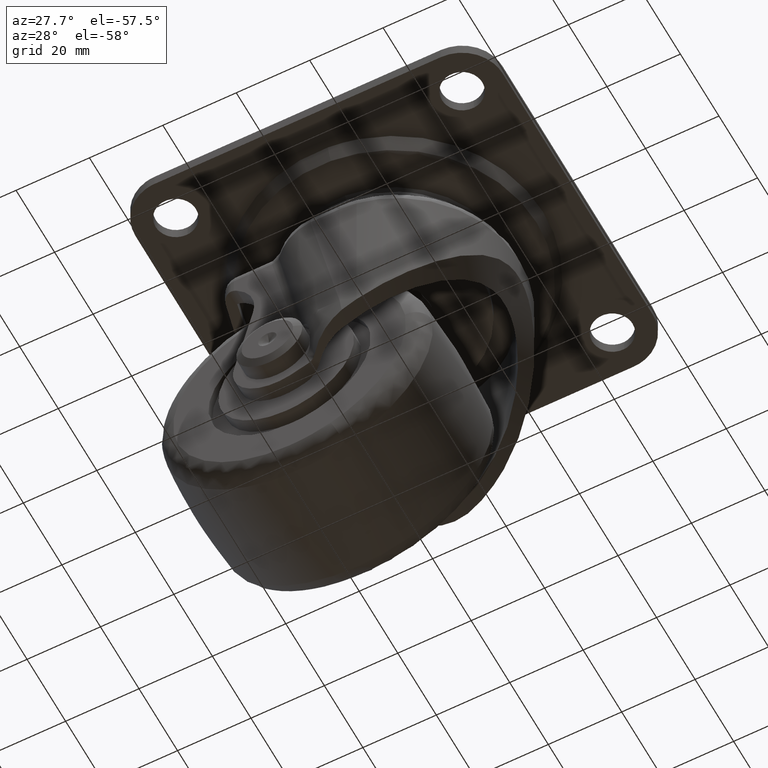
[diagram: clean part render]
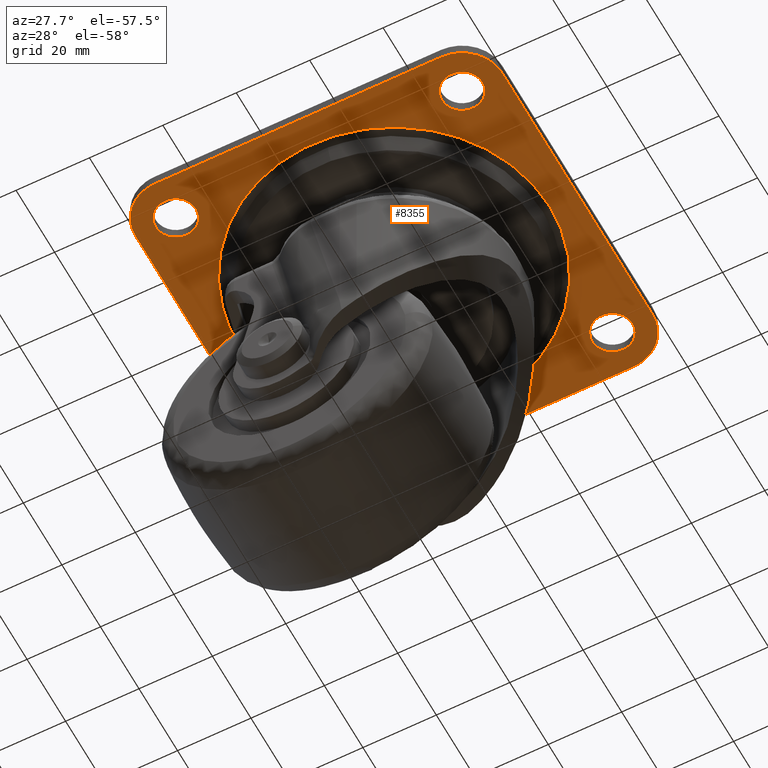
[diagram: same view with one face highlighted and labeled with its STEP entity id]
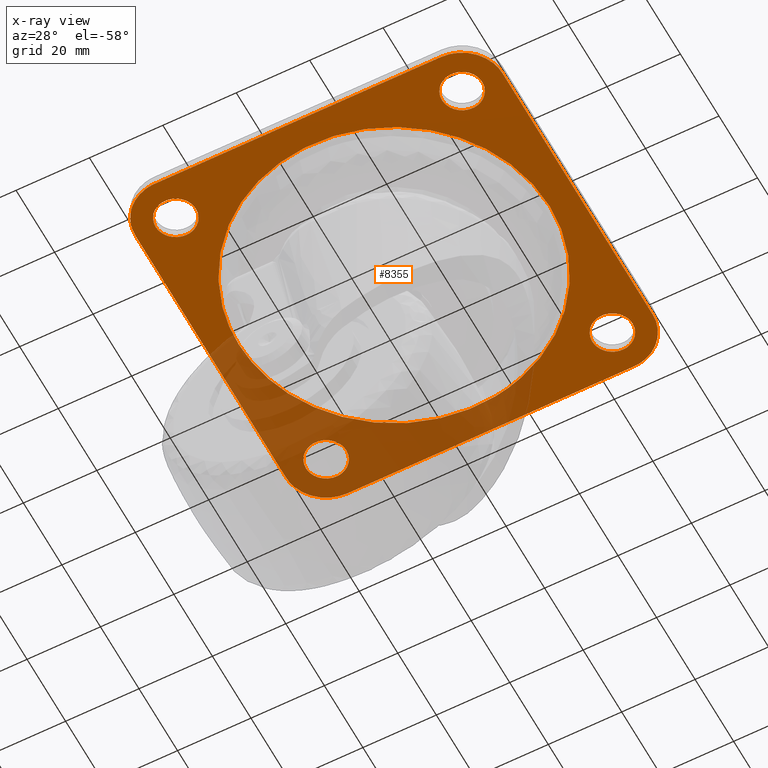
[diagram: x-ray of the same camera — body ghosted, the highlighted face saturated]
A machine part, auxiliary view. The second image highlights one B-rep face of the part: STEP entity #8355.
The next image is the same camera in x-ray: the body ghosted, the highlighted face saturated — about 28% of this face is hidden behind the body in this view.
In plain terms, the highlighted face is a freeform B-spline surface patch.
Its self-contained STEP definition (entity closure, byte-faithful):
#6246=CARTESIAN_POINT('',(-38.664233032356691,44.489741391307938,-3.200000000000000));
#6247=VERTEX_POINT('',#6246);
#6253=CARTESIAN_POINT('',(-33.500000000000000,39.0,-3.200000000000000));
#6254=VERTEX_POINT('',#6253);
#6255=CARTESIAN_POINT('',(-33.500000000000000,39.0,-3.200000000000000));
#6256=CARTESIAN_POINT('',(-33.500000000000000,44.173883367600588,-3.200000000000000));
#6257=CARTESIAN_POINT('',(-38.664233032356691,44.489741391307938,-3.200000000000000));
#6265=(BOUNDED_CURVE()B_SPLINE_CURVE(2,(#6255,#6256,#6257),.UNSPECIFIED.,.F.,.U.)B_SPLINE_CURVE_WITH_KNOTS((3,3),(0.500000000000000,0.739332962229295),.UNSPECIFIED.)CURVE()GEOMETRIC_REPRESENTATION_ITEM()RATIONAL_B_SPLINE_CURVE((1.0,0.719603993298013,0.976072041646040))REPRESENTATION_ITEM(''));
#6266=EDGE_CURVE('',#6254,#6247,#6265,.T.);
#6268=CARTESIAN_POINT('',(-39.649179250865487,33.538446530504089,-3.200000000000000));
#6269=VERTEX_POINT('',#6268);
#6270=CARTESIAN_POINT('',(-39.649179250865494,33.538446530504096,-3.200000000000000));
#6271=CARTESIAN_POINT('',(-39.325728090429756,33.500000000000000,-3.200000000000001));
#6272=CARTESIAN_POINT('',(-39.0,33.500000000000000,-3.200000000000000));
#6273=CARTESIAN_POINT('',(-33.500000000000007,33.500000000000007,-3.200000000000000));
#6274=CARTESIAN_POINT('',(-33.500000000000000,39.0,-3.200000000000000));
#6282=(BOUNDED_CURVE()B_SPLINE_CURVE(2,(#6270,#6271,#6272,#6273,#6274),.UNSPECIFIED.,.F.,.U.)B_SPLINE_CURVE_WITH_KNOTS((3,2,3),(0.229562753243201,0.250000000000000,0.500000000000000),.UNSPECIFIED.)CURVE()GEOMETRIC_REPRESENTATION_ITEM()RATIONAL_B_SPLINE_CURVE((0.956027302466078,0.976056276054866,1.0,0.707106781186548,1.0))REPRESENTATION_ITEM(''));
#6283=EDGE_CURVE('',#6269,#6254,#6282,.T.);
#6331=CARTESIAN_POINT('',(-44.500000000000000,39.0,-3.200000000000000));
#6332=VERTEX_POINT('',#6331);
#6333=CARTESIAN_POINT('',(-44.500000000000000,39.0,-3.200000000000000));
#6334=CARTESIAN_POINT('',(-44.499999999999993,34.115031964951029,-3.200000000000001));
#6335=CARTESIAN_POINT('',(-39.649179250865487,33.538446530504089,-3.200000000000000));
#6343=(BOUNDED_CURVE()B_SPLINE_CURVE(2,(#6333,#6334,#6335),.UNSPECIFIED.,.F.,.U.)B_SPLINE_CURVE_WITH_KNOTS((3,3),(0.0,0.229562753243201),.UNSPECIFIED.)CURVE()GEOMETRIC_REPRESENTATION_ITEM()RATIONAL_B_SPLINE_CURVE((1.0,0.731050505131682,0.956027302466078))REPRESENTATION_ITEM(''));
#6344=EDGE_CURVE('',#6332,#6269,#6343,.T.);
#6346=CARTESIAN_POINT('',(-38.664233032356691,44.489741391307938,-3.200000000000000));
#6347=CARTESIAN_POINT('',(-38.831959801655600,44.499999999999993,-3.200000000000001));
#6348=CARTESIAN_POINT('',(-39.0,44.500000000000000,-3.200000000000000));
#6349=CARTESIAN_POINT('',(-44.500000000000007,44.500000000000007,-3.200000000000000));
#6350=CARTESIAN_POINT('',(-44.500000000000000,39.0,-3.200000000000000));
#6358=(BOUNDED_CURVE()B_SPLINE_CURVE(2,(#6346,#6347,#6348,#6349,#6350),.UNSPECIFIED.,.F.,.U.)B_SPLINE_CURVE_WITH_KNOTS((3,2,3),(0.739332962229296,0.750000000000000,1.0),.UNSPECIFIED.)CURVE()GEOMETRIC_REPRESENTATION_ITEM()RATIONAL_B_SPLINE_CURVE((0.976072041646042,0.987502787888535,1.0,0.707106781186548,1.0))REPRESENTATION_ITEM(''));
#6359=EDGE_CURVE('',#6247,#6332,#6358,.T.);
#6436=CARTESIAN_POINT('',(39.335766967643309,44.489741391307938,-3.200000000000000));
#6437=VERTEX_POINT('',#6436);
#6443=CARTESIAN_POINT('',(44.500000000000000,39.0,-3.200000000000000));
#6444=VERTEX_POINT('',#6443);
#6445=CARTESIAN_POINT('',(44.500000000000000,39.0,-3.200000000000000));
#6446=CARTESIAN_POINT('',(44.500000000000007,44.173883367600588,-3.200000000000000));
#6447=CARTESIAN_POINT('',(39.335766967643316,44.489741391307938,-3.200000000000000));
#6455=(BOUNDED_CURVE()B_SPLINE_CURVE(2,(#6445,#6446,#6447),.UNSPECIFIED.,.F.,.U.)B_SPLINE_CURVE_WITH_KNOTS((3,3),(0.500000000000000,0.739332962229295),.UNSPECIFIED.)CURVE()GEOMETRIC_REPRESENTATION_ITEM()RATIONAL_B_SPLINE_CURVE((1.0,0.719603993298013,0.976072041646040))REPRESENTATION_ITEM(''));
#6456=EDGE_CURVE('',#6444,#6437,#6455,.T.);
#6458=CARTESIAN_POINT('',(38.350820749134499,33.538446530504089,-3.200000000000000));
#6459=VERTEX_POINT('',#6458);
#6460=CARTESIAN_POINT('',(38.350820749134499,33.538446530504089,-3.200000000000000));
#6461=CARTESIAN_POINT('',(38.674271909570237,33.500000000000000,-3.200000000000000));
#6462=CARTESIAN_POINT('',(39.0,33.500000000000000,-3.200000000000000));
#6463=CARTESIAN_POINT('',(44.500000000000007,33.500000000000007,-3.200000000000000));
#6464=CARTESIAN_POINT('',(44.500000000000000,39.0,-3.200000000000000));
#6472=(BOUNDED_CURVE()B_SPLINE_CURVE(2,(#6460,#6461,#6462,#6463,#6464),.UNSPECIFIED.,.F.,.U.)B_SPLINE_CURVE_WITH_KNOTS((3,2,3),(0.229562753243201,0.250000000000000,0.500000000000000),.UNSPECIFIED.)CURVE()GEOMETRIC_REPRESENTATION_ITEM()RATIONAL_B_SPLINE_CURVE((0.956027302466077,0.976056276054865,1.0,0.707106781186548,1.0))REPRESENTATION_ITEM(''));
#6473=EDGE_CURVE('',#6459,#6444,#6472,.T.);
#6521=CARTESIAN_POINT('',(33.500000000000000,39.0,-3.200000000000000));
#6522=VERTEX_POINT('',#6521);
#6523=CARTESIAN_POINT('',(33.500000000000000,39.0,-3.200000000000000));
#6524=CARTESIAN_POINT('',(33.500000000000007,34.115031964951037,-3.199999999999999));
#6525=CARTESIAN_POINT('',(38.350820749134499,33.538446530504089,-3.200000000000001));
#6533=(BOUNDED_CURVE()B_SPLINE_CURVE(2,(#6523,#6524,#6525),.UNSPECIFIED.,.F.,.U.)B_SPLINE_CURVE_WITH_KNOTS((3,3),(0.0,0.229562753243201),.UNSPECIFIED.)CURVE()GEOMETRIC_REPRESENTATION_ITEM()RATIONAL_B_SPLINE_CURVE((1.0,0.731050505131683,0.956027302466077))REPRESENTATION_ITEM(''));
#6534=EDGE_CURVE('',#6522,#6459,#6533,.T.);
#6536=CARTESIAN_POINT('',(39.335766967643309,44.489741391307938,-3.200000000000001));
#6537=CARTESIAN_POINT('',(39.168040198344400,44.500000000000000,-3.200000000000000));
#6538=CARTESIAN_POINT('',(39.0,44.500000000000000,-3.200000000000000));
#6539=CARTESIAN_POINT('',(33.500000000000007,44.500000000000007,-3.200000000000000));
#6540=CARTESIAN_POINT('',(33.500000000000000,39.0,-3.200000000000000));
#6548=(BOUNDED_CURVE()B_SPLINE_CURVE(2,(#6536,#6537,#6538,#6539,#6540),.UNSPECIFIED.,.F.,.U.)B_SPLINE_CURVE_WITH_KNOTS((3,2,3),(0.739332962229296,0.750000000000000,1.0),.UNSPECIFIED.)CURVE()GEOMETRIC_REPRESENTATION_ITEM()RATIONAL_B_SPLINE_CURVE((0.976072041646042,0.987502787888535,1.0,0.707106781186548,1.0))REPRESENTATION_ITEM(''));
#6549=EDGE_CURVE('',#6437,#6522,#6548,.T.);
#6626=CARTESIAN_POINT('',(39.335766967643309,-33.510260508692113,-3.200000000000000));
#6627=VERTEX_POINT('',#6626);
#6633=CARTESIAN_POINT('',(44.500000000000000,-39.000001900000044,-3.200000000000000));
#6634=VERTEX_POINT('',#6633);
#6635=CARTESIAN_POINT('',(44.500000000000000,-39.000001900000044,-3.200000000000000));
#6636=CARTESIAN_POINT('',(44.500000000000007,-33.826118532399448,-3.200000000000000));
#6637=CARTESIAN_POINT('',(39.335766967643316,-33.510260508692113,-3.200000000000000));
#6645=(BOUNDED_CURVE()B_SPLINE_CURVE(2,(#6635,#6636,#6637),.UNSPECIFIED.,.F.,.U.)B_SPLINE_CURVE_WITH_KNOTS((3,3),(0.500000000000000,0.739332962229295),.UNSPECIFIED.)CURVE()GEOMETRIC_REPRESENTATION_ITEM()RATIONAL_B_SPLINE_CURVE((1.0,0.719603993298013,0.976072041646040))REPRESENTATION_ITEM(''));
#6646=EDGE_CURVE('',#6634,#6627,#6645,.T.);
#6648=CARTESIAN_POINT('',(38.350820749134499,-44.461555369495947,-3.200000000000000));
#6649=VERTEX_POINT('',#6648);
#6650=CARTESIAN_POINT('',(38.350820749134499,-44.461555369495954,-3.200000000000000));
#6651=CARTESIAN_POINT('',(38.674271909570230,-44.500001900000036,-3.200000000000001));
#6652=CARTESIAN_POINT('',(39.0,-44.500001900000044,-3.200000000000000));
#6653=CARTESIAN_POINT('',(44.500000000000007,-44.500001900000036,-3.200000000000000));
#6654=CARTESIAN_POINT('',(44.500000000000000,-39.000001900000044,-3.200000000000000));
#6662=(BOUNDED_CURVE()B_SPLINE_CURVE(2,(#6650,#6651,#6652,#6653,#6654),.UNSPECIFIED.,.F.,.U.)B_SPLINE_CURVE_WITH_KNOTS((3,2,3),(0.229562753243201,0.250000000000000,0.500000000000000),.UNSPECIFIED.)CURVE()GEOMETRIC_REPRESENTATION_ITEM()RATIONAL_B_SPLINE_CURVE((0.956027302466077,0.976056276054865,1.0,0.707106781186548,1.0))REPRESENTATION_ITEM(''));
#6663=EDGE_CURVE('',#6649,#6634,#6662,.T.);
#6711=CARTESIAN_POINT('',(33.500000000000000,-39.000001900000044,-3.200000000000000));
#6712=VERTEX_POINT('',#6711);
#6713=CARTESIAN_POINT('',(33.500000000000000,-39.000001900000044,-3.200000000000000));
#6714=CARTESIAN_POINT('',(33.499999999999993,-43.884969935049014,-3.200000000000000));
#6715=CARTESIAN_POINT('',(38.350820749134499,-44.461555369495954,-3.200000000000000));
#6723=(BOUNDED_CURVE()B_SPLINE_CURVE(2,(#6713,#6714,#6715),.UNSPECIFIED.,.F.,.U.)B_SPLINE_CURVE_WITH_KNOTS((3,3),(0.0,0.229562753243201),.UNSPECIFIED.)CURVE()GEOMETRIC_REPRESENTATION_ITEM()RATIONAL_B_SPLINE_CURVE((1.0,0.731050505131683,0.956027302466077))REPRESENTATION_ITEM(''));
#6724=EDGE_CURVE('',#6712,#6649,#6723,.T.);
#6726=CARTESIAN_POINT('',(39.335766967643309,-33.510260508692113,-3.200000000000000));
#6727=CARTESIAN_POINT('',(39.168040198344407,-33.500001900000065,-3.200000000000001));
#6728=CARTESIAN_POINT('',(39.0,-33.500001900000051,-3.200000000000000));
#6729=CARTESIAN_POINT('',(33.500000000000007,-33.500001900000065,-3.200000000000000));
#6730=CARTESIAN_POINT('',(33.500000000000000,-39.000001900000044,-3.200000000000000));
#6738=(BOUNDED_CURVE()B_SPLINE_CURVE(2,(#6726,#6727,#6728,#6729,#6730),.UNSPECIFIED.,.F.,.U.)B_SPLINE_CURVE_WITH_KNOTS((3,2,3),(0.739332962229296,0.750000000000000,1.0),.UNSPECIFIED.)CURVE()GEOMETRIC_REPRESENTATION_ITEM()RATIONAL_B_SPLINE_CURVE((0.976072041646042,0.987502787888535,1.0,0.707106781186548,1.0))REPRESENTATION_ITEM(''));
#6739=EDGE_CURVE('',#6627,#6712,#6738,.T.);
#6816=CARTESIAN_POINT('',(-38.664233032356691,-33.510260508692113,-3.200000000000000));
#6817=VERTEX_POINT('',#6816);
#6823=CARTESIAN_POINT('',(-33.500000000000000,-39.000001900000044,-3.200000000000000));
#6824=VERTEX_POINT('',#6823);
#6825=CARTESIAN_POINT('',(-33.500000000000000,-39.000001900000044,-3.200000000000000));
#6826=CARTESIAN_POINT('',(-33.500000000000000,-33.826118532399448,-3.200000000000000));
#6827=CARTESIAN_POINT('',(-38.664233032356691,-33.510260508692113,-3.200000000000000));
#6835=(BOUNDED_CURVE()B_SPLINE_CURVE(2,(#6825,#6826,#6827),.UNSPECIFIED.,.F.,.U.)B_SPLINE_CURVE_WITH_KNOTS((3,3),(0.500000000000000,0.739332962229295),.UNSPECIFIED.)CURVE()GEOMETRIC_REPRESENTATION_ITEM()RATIONAL_B_SPLINE_CURVE((1.0,0.719603993298013,0.976072041646040))REPRESENTATION_ITEM(''));
#6836=EDGE_CURVE('',#6824,#6817,#6835,.T.);
#6838=CARTESIAN_POINT('',(-39.649179250865487,-44.461555369495947,-3.200000000000000));
#6839=VERTEX_POINT('',#6838);
#6840=CARTESIAN_POINT('',(-39.649179250865487,-44.461555369495954,-3.200000000000000));
#6841=CARTESIAN_POINT('',(-39.325728090429763,-44.500001900000051,-3.200000000000000));
#6842=CARTESIAN_POINT('',(-39.0,-44.500001900000044,-3.200000000000000));
#6843=CARTESIAN_POINT('',(-33.500000000000007,-44.500001900000036,-3.200000000000000));
#6844=CARTESIAN_POINT('',(-33.500000000000000,-39.000001900000044,-3.200000000000000));
#6852=(BOUNDED_CURVE()B_SPLINE_CURVE(2,(#6840,#6841,#6842,#6843,#6844),.UNSPECIFIED.,.F.,.U.)B_SPLINE_CURVE_WITH_KNOTS((3,2,3),(0.229562753243201,0.250000000000000,0.500000000000000),.UNSPECIFIED.)CURVE()GEOMETRIC_REPRESENTATION_ITEM()RATIONAL_B_SPLINE_CURVE((0.956027302466078,0.976056276054866,1.0,0.707106781186548,1.0))REPRESENTATION_ITEM(''));
#6853=EDGE_CURVE('',#6839,#6824,#6852,.T.);
#6901=CARTESIAN_POINT('',(-44.500000000000000,-39.000001900000044,-3.200000000000000));
#6902=VERTEX_POINT('',#6901);
#6903=CARTESIAN_POINT('',(-44.500000000000000,-39.000001900000044,-3.200000000000000));
#6904=CARTESIAN_POINT('',(-44.499999999999993,-43.884969935049021,-3.200000000000000));
#6905=CARTESIAN_POINT('',(-39.649179250865487,-44.461555369495954,-3.200000000000001));
#6913=(BOUNDED_CURVE()B_SPLINE_CURVE(2,(#6903,#6904,#6905),.UNSPECIFIED.,.F.,.U.)B_SPLINE_CURVE_WITH_KNOTS((3,3),(0.0,0.229562753243201),.UNSPECIFIED.)CURVE()GEOMETRIC_REPRESENTATION_ITEM()RATIONAL_B_SPLINE_CURVE((1.0,0.731050505131682,0.956027302466078))REPRESENTATION_ITEM(''));
#6914=EDGE_CURVE('',#6902,#6839,#6913,.T.);
#6916=CARTESIAN_POINT('',(-38.664233032356691,-33.510260508692113,-3.200000000000000));
#6917=CARTESIAN_POINT('',(-38.831959801655600,-33.500001900000065,-3.200000000000001));
#6918=CARTESIAN_POINT('',(-39.0,-33.500001900000051,-3.200000000000000));
#6919=CARTESIAN_POINT('',(-44.500000000000007,-33.500001900000065,-3.200000000000000));
#6920=CARTESIAN_POINT('',(-44.500000000000000,-39.000001900000044,-3.200000000000000));
#6928=(BOUNDED_CURVE()B_SPLINE_CURVE(2,(#6916,#6917,#6918,#6919,#6920),.UNSPECIFIED.,.F.,.U.)B_SPLINE_CURVE_WITH_KNOTS((3,2,3),(0.739332962229296,0.750000000000000,1.0),.UNSPECIFIED.)CURVE()GEOMETRIC_REPRESENTATION_ITEM()RATIONAL_B_SPLINE_CURVE((0.976072041646042,0.987502787888535,1.0,0.707106781186548,1.0))REPRESENTATION_ITEM(''));
#6929=EDGE_CURVE('',#6817,#6902,#6928,.T.);
#7744=CARTESIAN_POINT('',(13.500830319549250,40.187431983586229,-3.200000500000001));
#7745=VERTEX_POINT('',#7744);
#7759=CARTESIAN_POINT('',(42.394599999999997,0.0,-3.200000000000000));
#7760=VERTEX_POINT('',#7759);
#7761=CARTESIAN_POINT('',(13.500830319549253,40.187431983586229,-3.200000500000001));
#7762=CARTESIAN_POINT('',(42.394599999999997,30.480668891368211,-3.200000000000001));
#7763=CARTESIAN_POINT('',(42.394599999999997,0.0,-3.200000000000000));
#7771=(BOUNDED_CURVE()B_SPLINE_CURVE(2,(#7761,#7762,#7763),.UNSPECIFIED.,.F.,.U.)B_SPLINE_CURVE_WITH_KNOTS((3,3),(0.304134442290381,0.500000000000000),.UNSPECIFIED.)CURVE()GEOMETRIC_REPRESENTATION_ITEM()RATIONAL_B_SPLINE_CURVE((0.900621820756779,0.770529225390951,1.0))REPRESENTATION_ITEM(''));
#7772=EDGE_CURVE('',#7745,#7760,#7771,.T.);
#7774=CARTESIAN_POINT('',(-42.394599999999997,0.0,-3.200000000000000));
#7775=VERTEX_POINT('',#7774);
#7776=CARTESIAN_POINT('',(42.394599999999997,0.0,-3.200000000000000));
#7777=CARTESIAN_POINT('',(42.394600000000004,-42.394600000000004,-3.200000000000000));
#7778=CARTESIAN_POINT('',(0.0,-42.394599999999997,-3.200000000000000));
#7779=CARTESIAN_POINT('',(-42.394600000000004,-42.394600000000004,-3.200000000000000));
#7780=CARTESIAN_POINT('',(-42.394599999999997,0.0,-3.200000000000000));
#7788=(BOUNDED_CURVE()B_SPLINE_CURVE(2,(#7776,#7777,#7778,#7779,#7780),.UNSPECIFIED.,.F.,.U.)B_SPLINE_CURVE_WITH_KNOTS((3,2,3),(0.500000000000000,0.750000000000000,1.0),.UNSPECIFIED.)CURVE()GEOMETRIC_REPRESENTATION_ITEM()RATIONAL_B_SPLINE_CURVE((1.0,0.707106781186548,1.0,0.707106781186548,1.0))REPRESENTATION_ITEM(''));
#7789=EDGE_CURVE('',#7760,#7775,#7788,.T.);
#7791=CARTESIAN_POINT('',(-38.359780958461940,18.050742754180071,-3.200000500000001));
#7792=VERTEX_POINT('',#7791);
#7793=CARTESIAN_POINT('',(-42.394599999999997,0.0,-3.200000000000000));
#7794=CARTESIAN_POINT('',(-42.394599999999997,9.476315831833384,-3.200000000000000));
#7795=CARTESIAN_POINT('',(-38.359780958461940,18.050742754180067,-3.200000500000001));
#7803=(BOUNDED_CURVE()B_SPLINE_CURVE(2,(#7793,#7794,#7795),.UNSPECIFIED.,.F.,.U.)B_SPLINE_CURVE_WITH_KNOTS((3,3),(0.0,0.072331535363538),.UNSPECIFIED.)CURVE()GEOMETRIC_REPRESENTATION_ITEM()RATIONAL_B_SPLINE_CURVE((1.0,0.915258335142617,0.879552628112409))REPRESENTATION_ITEM(''));
#7804=EDGE_CURVE('',#7775,#7792,#7803,.T.);
#7845=CARTESIAN_POINT('',(-38.359780958461940,18.050742754180067,-3.200000500000001));
#7846=CARTESIAN_POINT('',(-26.904431271662581,42.394599999999990,-3.200000000000000));
#7847=CARTESIAN_POINT('',(0.0,42.394599999999997,-3.200000000000000));
#7848=CARTESIAN_POINT('',(6.930833346644811,42.394599999999997,-3.200000000000000));
#7849=CARTESIAN_POINT('',(13.500830319549253,40.187431983586229,-3.200000500000001));
#7857=(BOUNDED_CURVE()B_SPLINE_CURVE(2,(#7845,#7846,#7847,#7848,#7849),.UNSPECIFIED.,.F.,.U.)B_SPLINE_CURVE_WITH_KNOTS((3,2,3),(0.072331535363538,0.250000000000000,0.304134442290382),.UNSPECIFIED.)CURVE()GEOMETRIC_REPRESENTATION_ITEM()RATIONAL_B_SPLINE_CURVE((0.879552628112409,0.791848446043931,1.0,0.936577555795596,0.900621820756779))REPRESENTATION_ITEM(''));
#7858=EDGE_CURVE('',#7792,#7745,#7857,.T.);
#8070=CARTESIAN_POINT('',(50.0,-39.000002475958752,-3.200000000000000));
#8071=VERTEX_POINT('',#8070);
#8077=CARTESIAN_POINT('',(50.0,39.0,-3.200000000000000));
#8078=VERTEX_POINT('',#8077);
#8079=CARTESIAN_POINT('',(50.0,-39.000002475958752,-3.200000000000000));
#8080=CARTESIAN_POINT('',(50.0,39.0,-3.200000000000000));
#8081=QUASI_UNIFORM_CURVE('',1,(#8079,#8080),.UNSPECIFIED.,.F.,.U.);
#8082=EDGE_CURVE('',#8071,#8078,#8081,.T.);
#8107=CARTESIAN_POINT('',(39.0,-50.000001900000001,-3.200000000000000));
#8108=VERTEX_POINT('',#8107);
#8114=CARTESIAN_POINT('',(39.0,-50.000001900000051,-3.200000000000000));
#8115=CARTESIAN_POINT('',(49.999999424041320,-50.000001900000051,-3.200000000000000));
#8116=CARTESIAN_POINT('',(49.999999999999993,-39.000002475958752,-3.200000000000000));
#8124=(BOUNDED_CURVE()B_SPLINE_CURVE(2,(#8114,#8115,#8116),.UNSPECIFIED.,.F.,.U.)CURVE()GEOMETRIC_REPRESENTATION_ITEM()QUASI_UNIFORM_CURVE()RATIONAL_B_SPLINE_CURVE((1.0,0.707106799698561,1.0))REPRESENTATION_ITEM(''));
#8125=EDGE_CURVE('',#8108,#8071,#8124,.T.);
#8137=CARTESIAN_POINT('',(-38.999998080138049,-50.000001899999887,-3.200000000000000));
#8138=VERTEX_POINT('',#8137);
#8144=CARTESIAN_POINT('',(-38.999998080138049,-50.000001899999887,-3.200000000000000));
#8145=CARTESIAN_POINT('',(39.0,-50.000001900000001,-3.200000000000000));
#8146=QUASI_UNIFORM_CURVE('',1,(#8144,#8145),.UNSPECIFIED.,.F.,.U.);
#8147=EDGE_CURVE('',#8138,#8108,#8146,.T.);
#8168=CARTESIAN_POINT('',(-50.000001000000204,-39.000001900000044,-3.200000000000000));
#8169=VERTEX_POINT('',#8168);
#8175=CARTESIAN_POINT('',(-50.000001000000204,-39.000001900000044,-3.200000000000000));
#8176=CARTESIAN_POINT('',(-50.000000792893388,-43.556351648418641,-3.200000000000000));
#8177=CARTESIAN_POINT('',(-46.778174414278404,-46.778177171825753,-3.200000000000000));
#8178=CARTESIAN_POINT('',(-43.556348035663397,-50.000002695232823,-3.200000000000000));
#8179=CARTESIAN_POINT('',(-38.999998080138049,-50.000001899999887,-3.200000000000000));
#8187=(BOUNDED_CURVE()B_SPLINE_CURVE(2,(#8175,#8176,#8177,#8178,#8179),.UNSPECIFIED.,.F.,.U.)B_SPLINE_CURVE_WITH_KNOTS((3,2,3),(0.0,0.500000000000000,1.0),.UNSPECIFIED.)CURVE()GEOMETRIC_REPRESENTATION_ITEM()RATIONAL_B_SPLINE_CURVE((1.0,0.923879515813573,1.0,0.923879515813573,1.0))REPRESENTATION_ITEM(''));
#8188=EDGE_CURVE('',#8169,#8138,#8187,.T.);
#8200=CARTESIAN_POINT('',(-50.0,39.0,-3.200000000000000));
#8201=VERTEX_POINT('',#8200);
#8207=CARTESIAN_POINT('',(-50.0,39.0,-3.200000000000000));
#8208=CARTESIAN_POINT('',(-50.000001000000204,-39.000001900000044,-3.200000000000000));
#8209=QUASI_UNIFORM_CURVE('',1,(#8207,#8208),.UNSPECIFIED.,.F.,.U.);
#8210=EDGE_CURVE('',#8201,#8169,#8209,.T.);
#8231=CARTESIAN_POINT('',(-39.0,50.0,-3.200000000000000));
#8232=VERTEX_POINT('',#8231);
#8238=CARTESIAN_POINT('',(-39.0,50.0,-3.200000000000000));
#8239=CARTESIAN_POINT('',(-50.0,50.0,-3.200000000000000));
#8240=CARTESIAN_POINT('',(-50.0,39.0,-3.200000000000000));
#8248=(BOUNDED_CURVE()B_SPLINE_CURVE(2,(#8238,#8239,#8240),.UNSPECIFIED.,.F.,.U.)CURVE()GEOMETRIC_REPRESENTATION_ITEM()QUASI_UNIFORM_CURVE()RATIONAL_B_SPLINE_CURVE((1.0,0.707106781186548,1.0))REPRESENTATION_ITEM(''));
#8249=EDGE_CURVE('',#8232,#8201,#8248,.T.);
#8261=CARTESIAN_POINT('',(39.0,50.0,-3.200000000000000));
#8262=VERTEX_POINT('',#8261);
#8268=CARTESIAN_POINT('',(39.0,50.0,-3.200000000000000));
#8269=CARTESIAN_POINT('',(-39.0,50.0,-3.200000000000000));
#8270=QUASI_UNIFORM_CURVE('',1,(#8268,#8269),.UNSPECIFIED.,.F.,.U.);
#8271=EDGE_CURVE('',#8262,#8232,#8270,.T.);
#8293=CARTESIAN_POINT('',(50.0,39.0,-3.200000000000000));
#8294=CARTESIAN_POINT('',(50.0,50.0,-3.200000000000000));
#8295=CARTESIAN_POINT('',(39.0,50.0,-3.200000000000000));
#8303=(BOUNDED_CURVE()B_SPLINE_CURVE(2,(#8293,#8294,#8295),.UNSPECIFIED.,.F.,.U.)CURVE()GEOMETRIC_REPRESENTATION_ITEM()QUASI_UNIFORM_CURVE()RATIONAL_B_SPLINE_CURVE((1.0,0.707106781186548,1.0))REPRESENTATION_ITEM(''));
#8304=EDGE_CURVE('',#8078,#8262,#8303,.T.);
#8310=CARTESIAN_POINT('',(-54.994999917402353,54.994999543815346,-3.200000000000000));
#8311=CARTESIAN_POINT('',(54.995002493680857,54.994999543815346,-3.200000000000000));
#8312=CARTESIAN_POINT('',(-54.994999917402353,-54.994996973466897,-3.200000000000000));
#8313=CARTESIAN_POINT('',(54.995002493680857,-54.994996973466897,-3.200000000000000));
#8314=B_SPLINE_SURFACE_WITH_KNOTS('',1,1,((#8310,#8312),(#8311,#8313)),.UNSPECIFIED.,.F.,.F.,.U.,(2,2),(2,2),(0.0,109.990002411083200),(0.0,109.989996517282290),.UNSPECIFIED.);
#8315=ORIENTED_EDGE('',*,*,#8304,.F.);
#8316=ORIENTED_EDGE('',*,*,#8082,.F.);
#8317=ORIENTED_EDGE('',*,*,#8125,.F.);
#8318=ORIENTED_EDGE('',*,*,#8147,.F.);
#8319=ORIENTED_EDGE('',*,*,#8188,.F.);
#8320=ORIENTED_EDGE('',*,*,#8210,.F.);
#8321=ORIENTED_EDGE('',*,*,#8249,.F.);
#8322=ORIENTED_EDGE('',*,*,#8271,.F.);
#8323=EDGE_LOOP('',(#8315,#8316,#8317,#8318,#8319,#8320,#8321,#8322));
#8324=FACE_OUTER_BOUND('',#8323,.T.);
#8325=ORIENTED_EDGE('',*,*,#7789,.F.);
#8326=ORIENTED_EDGE('',*,*,#7772,.F.);
#8327=ORIENTED_EDGE('',*,*,#7858,.F.);
#8328=ORIENTED_EDGE('',*,*,#7804,.F.);
#8329=EDGE_LOOP('',(#8325,#8326,#8327,#8328));
#8330=FACE_BOUND('',#8329,.T.);
#8331=ORIENTED_EDGE('',*,*,#6836,.T.);
#8332=ORIENTED_EDGE('',*,*,#6929,.T.);
#8333=ORIENTED_EDGE('',*,*,#6914,.T.);
#8334=ORIENTED_EDGE('',*,*,#6853,.T.);
#8335=EDGE_LOOP('',(#8331,#8332,#8333,#8334));
#8336=FACE_BOUND('',#8335,.T.);
#8337=ORIENTED_EDGE('',*,*,#6646,.T.);
#8338=ORIENTED_EDGE('',*,*,#6739,.T.);
#8339=ORIENTED_EDGE('',*,*,#6724,.T.);
#8340=ORIENTED_EDGE('',*,*,#6663,.T.);
#8341=EDGE_LOOP('',(#8337,#8338,#8339,#8340));
#8342=FACE_BOUND('',#8341,.T.);
#8343=ORIENTED_EDGE('',*,*,#6456,.T.);
#8344=ORIENTED_EDGE('',*,*,#6549,.T.);
#8345=ORIENTED_EDGE('',*,*,#6534,.T.);
#8346=ORIENTED_EDGE('',*,*,#6473,.T.);
#8347=EDGE_LOOP('',(#8343,#8344,#8345,#8346));
#8348=FACE_BOUND('',#8347,.T.);
#8349=ORIENTED_EDGE('',*,*,#6266,.T.);
#8350=ORIENTED_EDGE('',*,*,#6359,.T.);
#8351=ORIENTED_EDGE('',*,*,#6344,.T.);
#8352=ORIENTED_EDGE('',*,*,#6283,.T.);
#8353=EDGE_LOOP('',(#8349,#8350,#8351,#8352));
#8354=FACE_BOUND('',#8353,.T.);
#8355=ADVANCED_FACE('',(#8324,#8330,#8336,#8342,#8348,#8354),#8314,.T.);